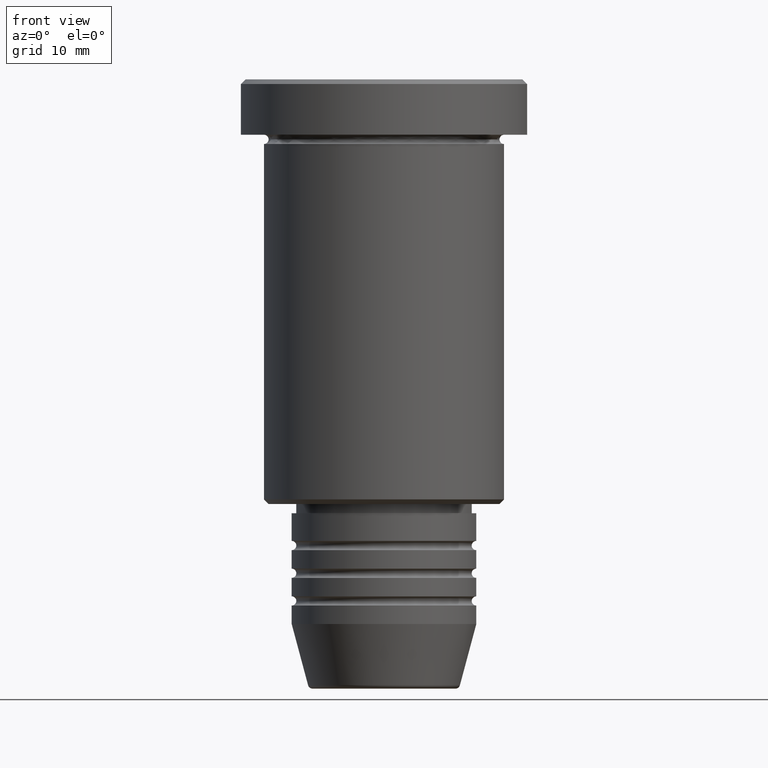
[diagram: clean part render]
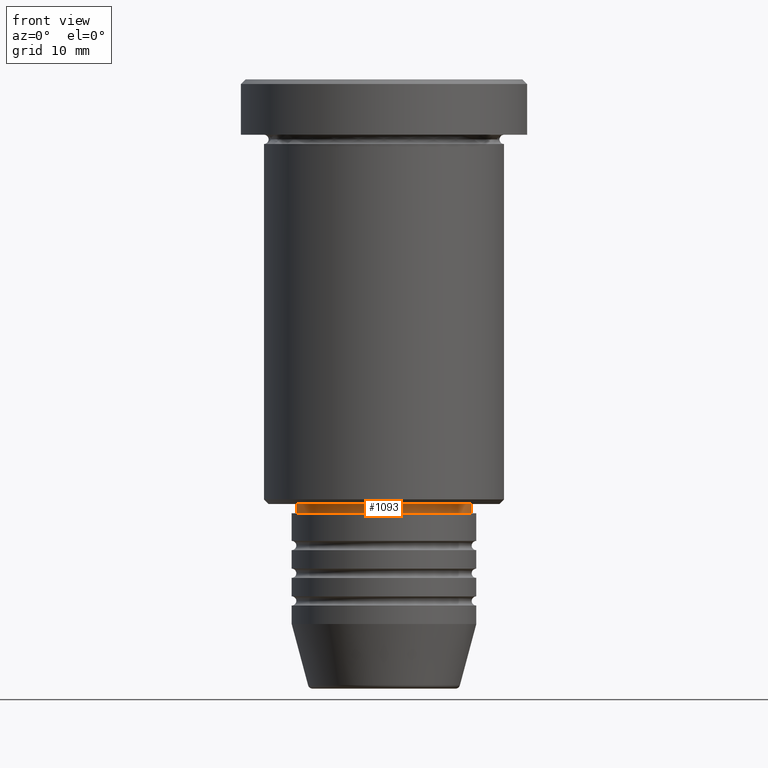
[diagram: same view with one face highlighted and labeled with its STEP entity id]
A machine part, front view. The second image highlights one B-rep face of the part: STEP entity #1093.
In plain terms, the highlighted cylindrical surface (partial cylindrical patch) has radius 9.5 mm, axis along (-0, -0, 1).
Its self-contained STEP definition (entity closure, byte-faithful):
#25 = ORIENTED_EDGE ( 'NONE', *, *, #715, .T. ) ;
#34 = EDGE_LOOP ( 'NONE', ( #145, #25, #741, #872 ) ) ;
#35 = DIRECTION ( 'NONE',  ( 1.000000000000000000, 0.000000000000000000, 0.000000000000000000 ) ) ;
#64 = EDGE_CURVE ( 'NONE', #796, #511, #192, .T. ) ;
#66 = VERTEX_POINT ( 'NONE', #755 ) ;
#145 = ORIENTED_EDGE ( 'NONE', *, *, #363, .F. ) ;
#176 = DIRECTION ( 'NONE',  ( -0.000000000000000000, -0.000000000000000000, 1.000000000000000000 ) ) ;
#192 = LINE ( 'NONE', #1031, #615 ) ;
#196 = DIRECTION ( 'NONE',  ( -0.000000000000000000, -0.000000000000000000, 1.000000000000000000 ) ) ;
#201 = CARTESIAN_POINT ( 'NONE',  ( 0.000000000000000000, 0.000000000000000000, 0.000000000000000000 ) ) ;
#266 = AXIS2_PLACEMENT_3D ( 'NONE', #962, #373, #35 ) ;
#287 = FACE_OUTER_BOUND ( 'NONE', #34, .T. ) ;
#363 = EDGE_CURVE ( 'NONE', #753, #66, #423, .T. ) ;
#373 = DIRECTION ( 'NONE',  ( -0.000000000000000000, -0.000000000000000000, 1.000000000000000000 ) ) ;
#400 = CIRCLE ( 'NONE', #670, 9.500000000000000000 ) ;
#423 = LINE ( 'NONE', #608, #825 ) ;
#439 = DIRECTION ( 'NONE',  ( 1.000000000000000000, 0.000000000000000000, 0.000000000000000000 ) ) ;
#454 = AXIS2_PLACEMENT_3D ( 'NONE', #201, #196, #574 ) ;
#484 = CARTESIAN_POINT ( 'NONE',  ( 9.500000000000000000, 0.000000000000000000, -47.00000000000000000 ) ) ;
#497 = CARTESIAN_POINT ( 'NONE',  ( 9.500000000000000000, 0.000000000000000000, -46.00000000000000000 ) ) ;
#511 = VERTEX_POINT ( 'NONE', #497 ) ;
#574 = DIRECTION ( 'NONE',  ( 1.000000000000000000, 0.000000000000000000, 0.000000000000000000 ) ) ;
#591 = EDGE_CURVE ( 'NONE', #66, #511, #400, .T. ) ;
#608 = CARTESIAN_POINT ( 'NONE',  ( -9.500000000000000000, 1.163414459189985485E-15, 0.000000000000000000 ) ) ;
#615 = VECTOR ( 'NONE', #763, 1000.000000000000000 ) ;
#670 = AXIS2_PLACEMENT_3D ( 'NONE', #917, #176, #439 ) ;
#715 = EDGE_CURVE ( 'NONE', #753, #796, #764, .T. ) ;
#729 = CARTESIAN_POINT ( 'NONE',  ( -9.500000000000000000, 1.163414459189985485E-15, -47.00000000000000000 ) ) ;
#741 = ORIENTED_EDGE ( 'NONE', *, *, #64, .T. ) ;
#753 = VERTEX_POINT ( 'NONE', #729 ) ;
#755 = CARTESIAN_POINT ( 'NONE',  ( -9.500000000000000000, 1.163414459189985485E-15, -46.00000000000000000 ) ) ;
#763 = DIRECTION ( 'NONE',  ( -0.000000000000000000, -0.000000000000000000, 1.000000000000000000 ) ) ;
#764 = CIRCLE ( 'NONE', #266, 9.500000000000000000 ) ;
#796 = VERTEX_POINT ( 'NONE', #484 ) ;
#812 = DIRECTION ( 'NONE',  ( -0.000000000000000000, -0.000000000000000000, 1.000000000000000000 ) ) ;
#825 = VECTOR ( 'NONE', #812, 1000.000000000000000 ) ;
#872 = ORIENTED_EDGE ( 'NONE', *, *, #591, .F. ) ;
#917 = CARTESIAN_POINT ( 'NONE',  ( 0.000000000000000000, 0.000000000000000000, -46.00000000000000000 ) ) ;
#962 = CARTESIAN_POINT ( 'NONE',  ( 0.000000000000000000, 0.000000000000000000, -47.00000000000000000 ) ) ;
#1031 = CARTESIAN_POINT ( 'NONE',  ( 9.500000000000000000, 0.000000000000000000, 0.000000000000000000 ) ) ;
#1048 = CYLINDRICAL_SURFACE ( 'NONE', #454, 9.500000000000000000 ) ;
#1093 = ADVANCED_FACE ( 'NONE', ( #287 ), #1048, .T. ) ;